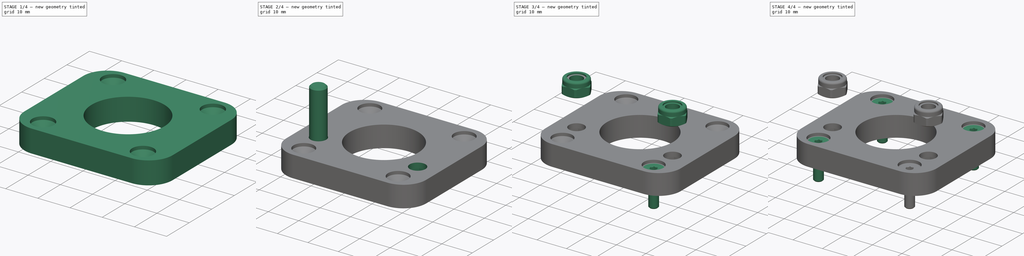
[diagram: build sequence overview — one tinted view per stage of 4, left to right]
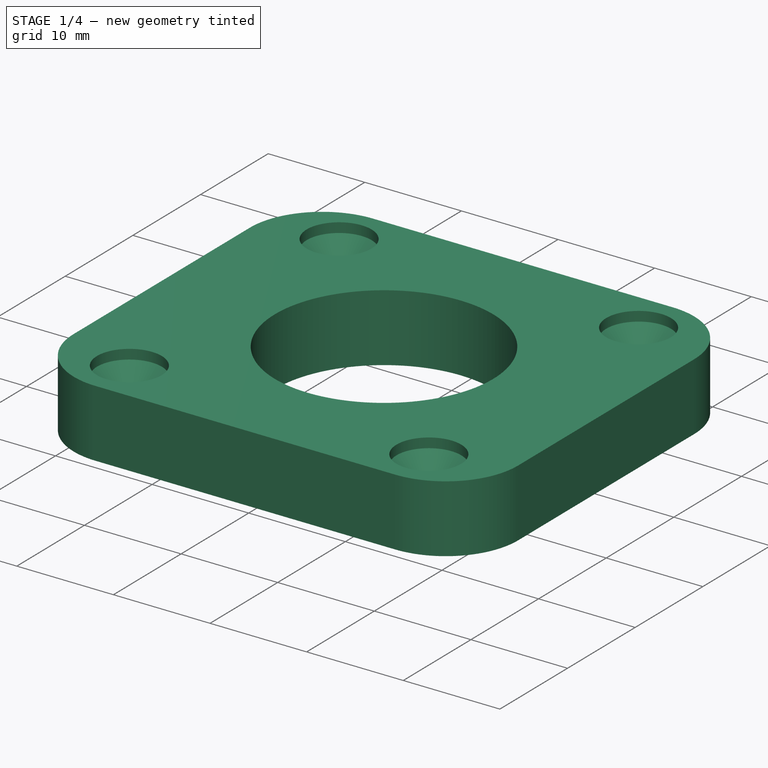
[diagram: stage 1 of 4 — iso view after this stage's code; geometry added in this stage tinted green]
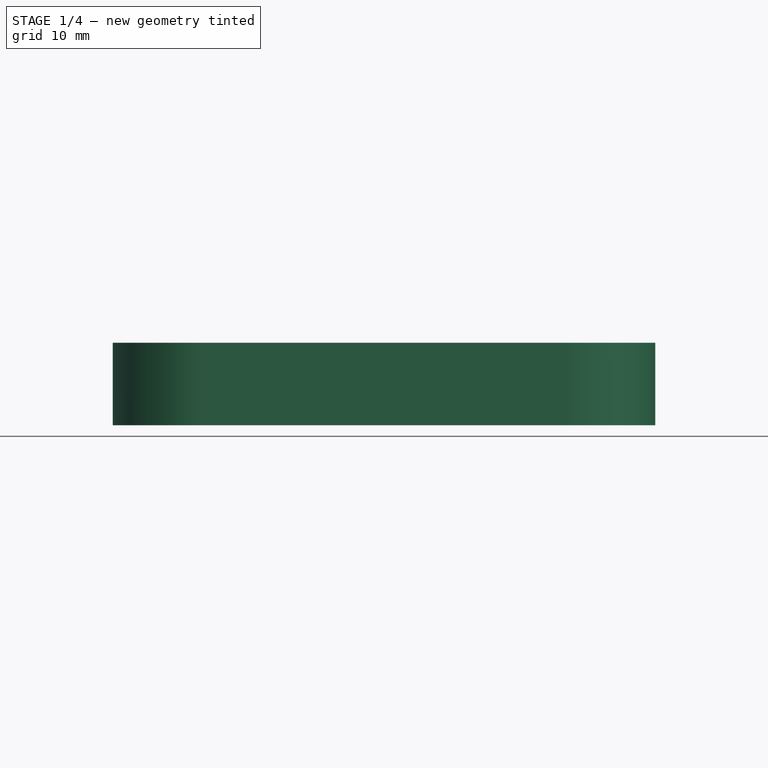
[diagram: stage 1 of 4 — front view after this stage's code; geometry added in this stage tinted green]
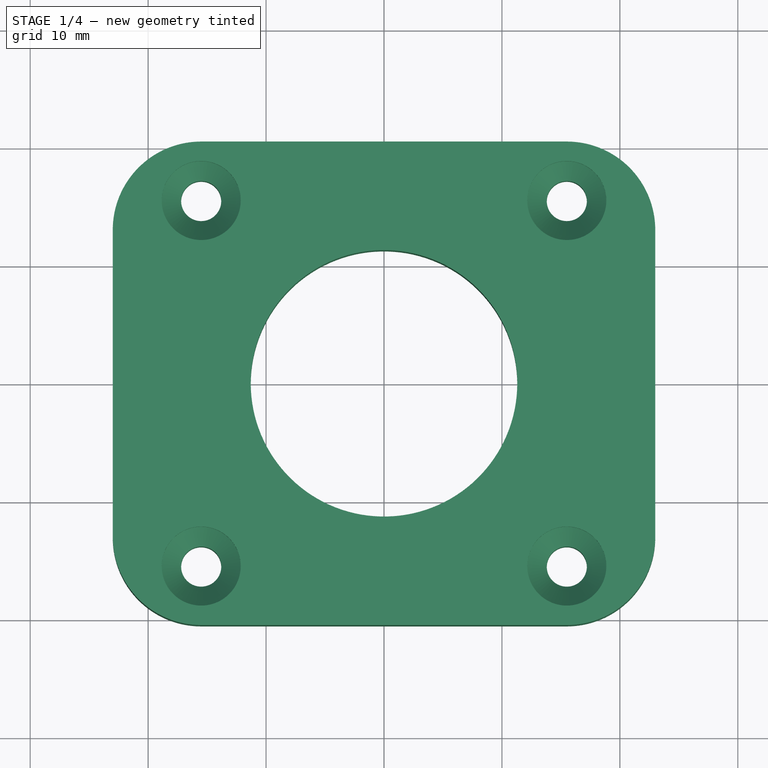
[diagram: stage 1 of 4 — top view after this stage's code; geometry added in this stage tinted green]
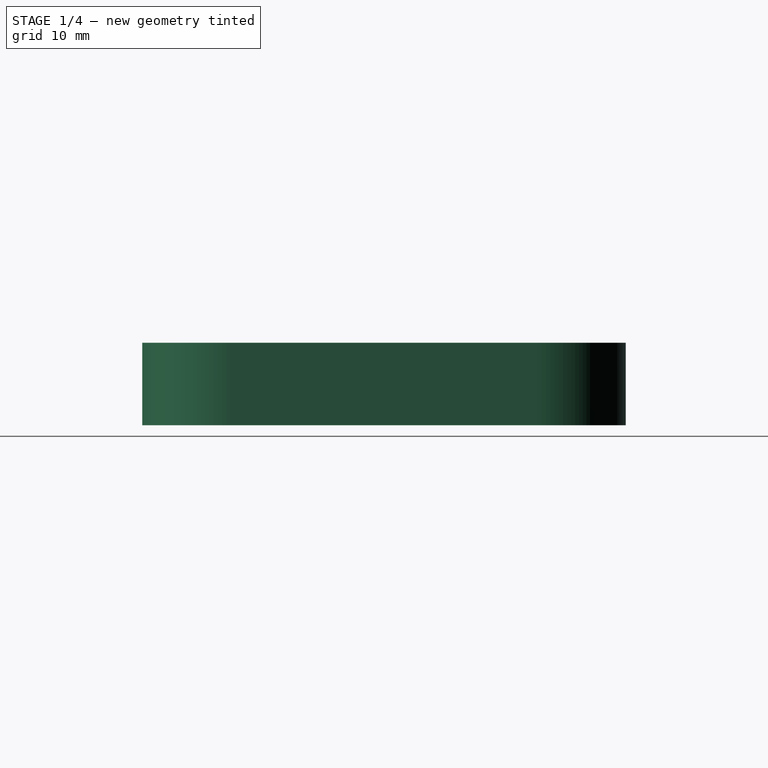
[diagram: stage 1 of 4 — right view after this stage's code; geometry added in this stage tinted green]
FCSTD DOCUMENT  (FreeCAD 0.20R29177 +426 (Git))
Label: SerpentinePlateCaptiveNut
License: All rights reserved
LicenseURL: http://en.wikipedia.org/wiki/All_rights_reserved
objects: Part::FeaturePython×8, App::DocumentObjectGroup×4, Sketcher::SketchObject×4, PartDesign::CoordinateSystem×3, PartDesign::Hole×2, PartDesign::Pocket×2, App::FeaturePython×1, PartDesign::Pad×1, PartDesign::Body×1, App::Part×1
note: 26 computed .brp shape members not serialized (recipe doc carries the construction recipe); baked Part::Feature solids carry a one-line shape summary decoded from their .brp

FEATURE [App::DocumentObjectGroup] Parts
FEATURE [PartDesign::CoordinateSystem] LCS_Origin
  AttacherType = Attacher::AttachEngine3D
  MapMode = 2
  Support = -> [X_Axis]
FEATURE [App::FeaturePython] Variables  # WARN: FeaturePython — macro-defined, semantics opaque (R4)
  IdlerMountOffsetX = 16.3
  IdlerMountOffsetY = 7.5
  Type = App::PropertyContainer
FEATURE [App::DocumentObjectGroup] Constraints
FEATURE [App::DocumentObjectGroup] Configurations
FEATURE [Sketcher::SketchObject] Sketch
  FullyConstrained = true
  MapMode = 5
  Support = -> [XY_Plane001]
  sketch-geometry (23):
    g0: LineSegment StartX=-15.5 StartY=15.5 StartZ=0 EndX=-15.5 EndY=-15.5 EndZ=0
    g1: LineSegment StartX=-15.5 StartY=-15.5 StartZ=0 EndX=15.5 EndY=-15.5 EndZ=0
    g2: LineSegment StartX=15.5 StartY=-15.5 StartZ=0 EndX=15.5 EndY=15.5 EndZ=0
    g3: LineSegment StartX=15.5 StartY=15.5 StartZ=0 EndX=-15.5 EndY=15.5 EndZ=0
    g4: GeomPoint X=0 Y=0 Z=0
    g5: Circle CenterX=-15.5 CenterY=15.5 CenterZ=0 NormalX=0 NormalY=0 NormalZ=1 AngleXU=0 Radius=1.7
    g6: Circle CenterX=15.5 CenterY=15.5 CenterZ=0 NormalX=0 NormalY=0 NormalZ=1 AngleXU=0 Radius=1.7
    g7: Circle CenterX=15.5 CenterY=-15.5 CenterZ=0 NormalX=0 NormalY=0 NormalZ=1 AngleXU=0 Radius=1.7
    g8: Circle CenterX=-15.5 CenterY=-15.5 CenterZ=0 NormalX=0 NormalY=0 NormalZ=1 AngleXU=0 Radius=1.7
    g9: Circle CenterX=0 CenterY=0 CenterZ=0 NormalX=0 NormalY=0 NormalZ=1 AngleXU=0 Radius=11.3
    g10: Circle CenterX=0 CenterY=0 CenterZ=0 NormalX=0 NormalY=0 NormalZ=1 AngleXU=0 Radius=6.11
    g11: ArcOfCircle CenterX=-15.5 CenterY=13 CenterZ=0 NormalX=0 NormalY=0 NormalZ=1 AngleXU=0 Radius=7.5 StartAngle=1.5708 EndAngle=3.14159
    g12: LineSegment StartX=-15.5 StartY=20.5 StartZ=0 EndX=15.5 EndY=20.5 EndZ=0
    g13: ArcOfCircle CenterX=15.5 CenterY=13 CenterZ=0 NormalX=0 NormalY=0 NormalZ=1 AngleXU=0 Radius=7.5 StartAngle=1e-16 EndAngle=1.5708
    g14: LineSegment StartX=23 StartY=13 StartZ=0 EndX=23 EndY=-13 EndZ=0
    g15: ArcOfCircle CenterX=15.5 CenterY=-13 CenterZ=0 NormalX=0 NormalY=0 NormalZ=1 AngleXU=0 Radius=7.5 StartAngle=4.71239 EndAngle=6.28319
    g16: LineSegment StartX=15.5 StartY=-20.5 StartZ=0 EndX=-15.5 EndY=-20.5 EndZ=0
    g17: ArcOfCircle CenterX=-15.5 CenterY=-13 CenterZ=0 NormalX=0 NormalY=0 NormalZ=1 AngleXU=0 Radius=7.5 StartAngle=3.14159 EndAngle=4.71239
    g18: LineSegment StartX=-23 StartY=-13 StartZ=0 EndX=-23 EndY=13 EndZ=0
    g19: GeomPoint X=-23 Y=20.5 Z=0
    g20: GeomPoint X=23 Y=-20.5 Z=0
    g21: LineSegment StartX=-15.5 StartY=20.5 StartZ=0 EndX=-15.5 EndY=15.5 EndZ=0
    g22: LineSegment StartX=15.5 StartY=-20.5 StartZ=0 EndX=15.5 EndY=-15.5 EndZ=0
  constraints (52):
    c: Coincident(g0,g1)
    c: Coincident(g1,g2)
    c: Coincident(g2,g3)
    c: Coincident(g3,g0)
    c: Horizontal(g1)
    c: Horizontal(g3)
    c: Vertical(g0)
    c: Vertical(g2)
    c: Symmetric(g1,g0,g4)
    c: Coincident(g4,g-1)
    c: Coincident(g5,g0)
    c: Coincident(g6,g2)
    c: Coincident(g7,g1)
    c: Coincident(g8,g0)
    c: Equal(g3,g0)
    c: Equal(g6,g5)
    c: Equal(g5,g8)
    c: Equal(g8,g7)
    c: Diameter(g6) = 3.4
    c: Coincident(g9,g4)
    c: Diameter(g9) = 22.6
    c: Coincident(g10,g9)
    c: Diameter(g10) = 12.22
    c: DistanceX(g3,g3) = 31
    c: Tangent(g11,g12) = 1.5708
    c: Tangent(g12,g13) = 1.5708
    c: Tangent(g13,g14) = 1.5708
    c: Tangent(g14,g15) = 1.5708
    c: Tangent(g15,g16) = 1.5708
    c: Tangent(g16,g17) = 1.5708
    c: Tangent(g17,g18) = 1.5708
    c: Tangent(g18,g11) = 1.5708
    c: Horizontal(g12)
    c: Horizontal(g16)
    c: Vertical(g14)
    c: Vertical(g18)
    c: Equal(g11,g13)
    c: Equal(g13,g15)
    c: Equal(g15,g17)
    c: PointOnObject(g19,g12)
    c: PointOnObject(g19,g18)
    c: PointOnObject(g20,g14)
    c: PointOnObject(g20,g16)
    c: DistanceX(g11,g13) = 46
    c: PointOnObject(g15,g2)
    c: DistanceY(g15,g7) = 5
    c: PointOnObject(g11,g0)
    c: Coincident(g21,g11)
    c: Coincident(g21,g0)
    c: Coincident(g22,g15)
    c: Coincident(g22,g1)
    c: Equal(g22,g21)
FEATURE [Sketcher::SketchObject] Sketch001
  AttachmentOffset = pos=(16.3,-7.5,5.4) rot=(0,0,1;0rad)
  FullyConstrained = true
  MapMode = 5
  Placement = pos=(16.3,-7.5,5.4) rot=(0,0,1;0rad)
  Support = -> [XY_Plane001]
  expr: .AttachmentOffset.Base.x = <<Variables>>.IdlerMountOffsetX
  expr: .AttachmentOffset.Base.y = <<Variables>>.IdlerMountOffsetY * -1
  expr: Constraints[5] = <<Variables>>.IdlerMountOffsetX * 2
  sketch-geometry (17):
    g0: GeomPoint X=0 Y=0 Z=0
    g1: Circle CenterX=0 CenterY=0 CenterZ=0 NormalX=0 NormalY=0 NormalZ=1 AngleXU=0 Radius=2.5
    g2: Circle CenterX=-32.6 CenterY=0 CenterZ=0 NormalX=0 NormalY=0 NormalZ=1 AngleXU=0 Radius=2.5
    g3: LineSegment StartX=-30.3195 StartY=3.95 StartZ=0 EndX=-34.8805 EndY=3.95 EndZ=0
    g4: LineSegment StartX=-34.8805 StartY=3.95 StartZ=0 EndX=-37.1611 EndY=-9e-16 EndZ=0
    g5: LineSegment StartX=-37.1611 StartY=-9e-16 StartZ=0 EndX=-34.8805 EndY=-3.95 EndZ=0
    g6: LineSegment StartX=-34.8805 StartY=-3.95 StartZ=0 EndX=-30.3195 EndY=-3.95 EndZ=0
    g7: LineSegment StartX=-30.3195 StartY=-3.95 StartZ=0 EndX=-28.0389 EndY=4e-16 EndZ=0
    g8: LineSegment StartX=-28.0389 StartY=4e-16 StartZ=0 EndX=-30.3195 EndY=3.95 EndZ=0
    g9: Circle CenterX=-32.6 CenterY=0 CenterZ=0 NormalX=0 NormalY=0 NormalZ=1 AngleXU=0 Radius=4.56107
    g10: LineSegment StartX=-2.28053 StartY=3.95 StartZ=0 EndX=-4.56107 EndY=9e-16 EndZ=0
    g11: LineSegment StartX=-4.56107 StartY=9e-16 StartZ=0 EndX=-2.28053 EndY=-3.95 EndZ=0
    g12: LineSegment StartX=-2.28053 StartY=-3.95 StartZ=0 EndX=2.28053 EndY=-3.95 EndZ=0
    g13: LineSegment StartX=2.28053 StartY=-3.95 StartZ=0 EndX=4.56107 EndY=4e-16 EndZ=0
    g14: LineSegment StartX=4.56107 StartY=4e-16 StartZ=0 EndX=2.28053 EndY=3.95 EndZ=0
    g15: LineSegment StartX=2.28053 StartY=3.95 StartZ=0 EndX=-2.28053 EndY=3.95 EndZ=0
    g16: Circle CenterX=0 CenterY=0 CenterZ=0 NormalX=0 NormalY=0 NormalZ=1 AngleXU=0 Radius=4.56107
  constraints (38):
    c: Coincident(g0,g-1)
    c: Diameter(g1) = 5
    c: Coincident(g1,g0)
    c: PointOnObject(g2,g-1)
    c: Equal(g2,g1)
    c: DistanceX(g2,g1) = 32.6
    c: Coincident(g3,g4)
    c: Coincident(g4,g5)
    c: Coincident(g5,g6)
    c: Coincident(g6,g7)
    c: Coincident(g7,g8)
    c: Coincident(g8,g3)
    c: Equal(g3, g4-g8) x5
    c: PointOnObject(g3,g9)
    c: PointOnObject(g4,g9)
    c: PointOnObject(g5,g9)
    c: PointOnObject(g6,g9)
    c: PointOnObject(g7,g9)
    c: PointOnObject(g8,g9)
    c: Coincident(g9,g2)
    c: Horizontal(g3)
    c: DistanceY(g5,g3) = 7.9
    c: Coincident(g10,g11)
    c: Coincident(g11,g12)
    c: Coincident(g12,g13)
    c: Coincident(g13,g14)
    c: Coincident(g14,g15)
    c: Coincident(g15,g10)
    c: Equal(g10, g11-g15) x5
    c: PointOnObject(g10,g16)
    c: PointOnObject(g11,g16)
    c: PointOnObject(g12,g16)
    c: PointOnObject(g13,g16)
    c: PointOnObject(g14,g16)
    c: PointOnObject(g15,g16)
    c: Coincident(g16,g0)
    c: Horizontal(g15)
    c: Equal(g15,g3)
FEATURE [PartDesign::Pad] Pad
  Direction = (0,0,1)
  Length = 7
  Length2 = 10
  Profile = -> Sketch
  ReferenceAxis = -> Sketch [N_Axis]
  Type = 0
FEATURE [Sketcher::SketchObject] Sketch003
  AttachmentOffset = pos=(0,0,6) rot=(0,0,1;0rad)
  FullyConstrained = true
  MapMode = 5
  Placement = pos=(0,0,6) rot=(0,0,1;0rad)
  Support = -> [XY_Plane001]
  expr: .AttachmentOffset.Base.z = <<Pad>>.Length - 1mm
  sketch-geometry (19):
    g0: LineSegment StartX=-15.5 StartY=15.5 StartZ=0 EndX=-15.5 EndY=-15.5 EndZ=0
    g1: LineSegment StartX=-15.5 StartY=-15.5 StartZ=0 EndX=15.5 EndY=-15.5 EndZ=0
    g2: LineSegment StartX=15.5 StartY=-15.5 StartZ=0 EndX=15.5 EndY=15.5 EndZ=0
    g3: LineSegment StartX=15.5 StartY=15.5 StartZ=0 EndX=-15.5 EndY=15.5 EndZ=0
    g4: GeomPoint X=0 Y=0 Z=0
    g5: Circle CenterX=-15.5 CenterY=15.5 CenterZ=0 NormalX=0 NormalY=0 NormalZ=1 AngleXU=0 Radius=1.7
    g6: Circle CenterX=15.5 CenterY=15.5 CenterZ=0 NormalX=0 NormalY=0 NormalZ=1 AngleXU=0 Radius=1.7
    g7: Circle CenterX=15.5 CenterY=-15.5 CenterZ=0 NormalX=0 NormalY=0 NormalZ=1 AngleXU=0 Radius=1.7
    g8: Circle CenterX=-15.5 CenterY=-15.5 CenterZ=0 NormalX=0 NormalY=0 NormalZ=1 AngleXU=0 Radius=1.7
    g9: ArcOfCircle CenterX=-15.5 CenterY=15.5 CenterZ=0 NormalX=0 NormalY=0 NormalZ=1 AngleXU=0 Radius=6 StartAngle=1.5708 EndAngle=3.14159
    g10: LineSegment StartX=-15.5 StartY=21.5 StartZ=0 EndX=15.5 EndY=21.5 EndZ=0
    g11: ArcOfCircle CenterX=15.5 CenterY=15.5 CenterZ=0 NormalX=0 NormalY=0 NormalZ=1 AngleXU=0 Radius=6 StartAngle=1e-16 EndAngle=1.5708
    g12: LineSegment StartX=21.5 StartY=15.5 StartZ=0 EndX=21.5 EndY=-13.5 EndZ=0
    g13: ArcOfCircle CenterX=15.5 CenterY=-13.5 CenterZ=0 NormalX=0 NormalY=0 NormalZ=1 AngleXU=0 Radius=6 StartAngle=4.71239 EndAngle=6.28319
    g14: LineSegment StartX=15.5 StartY=-19.5 StartZ=0 EndX=-15.5 EndY=-19.5 EndZ=0
    g15: ArcOfCircle CenterX=-15.5 CenterY=-13.5 CenterZ=0 NormalX=0 NormalY=0 NormalZ=1 AngleXU=0 Radius=6 StartAngle=3.14159 EndAngle=4.71239
    g16: LineSegment StartX=-21.5 StartY=-13.5 StartZ=0 EndX=-21.5 EndY=15.5 EndZ=0
    g17: GeomPoint X=-21.5 Y=21.5 Z=0
    g18: GeomPoint X=21.5 Y=-19.5 Z=0
  constraints (43):
    c: Coincident(g0,g1)
    c: Coincident(g1,g2)
    c: Coincident(g2,g3)
    c: Coincident(g3,g0)
    c: Horizontal(g1)
    c: Horizontal(g3)
    c: Vertical(g0)
    c: Vertical(g2)
    c: Symmetric(g1,g0,g4)
    c: Coincident(g4,g-1)
    c: Coincident(g5,g0)
    c: Coincident(g6,g2)
    c: Coincident(g7,g1)
    c: Coincident(g8,g0)
    c: Equal(g3,g0)
    c: Equal(g6,g5)
    c: Equal(g5,g8)
    c: Equal(g8,g7)
    c: Diameter(g6) = 3.4
    c: DistanceX(g3,g3) = 31
    c: Tangent(g9,g10) = 1.5708
    c: Tangent(g10,g11) = 1.5708
    c: Tangent(g11,g12) = 1.5708
    c: Tangent(g12,g13) = 1.5708
    c: Tangent(g13,g14) = 1.5708
    c: Tangent(g14,g15) = 1.5708
    c: Tangent(g15,g16) = 1.5708
    c: Tangent(g16,g9) = 1.5708
    c: Horizontal(g10)
    c: Horizontal(g14)
    c: Vertical(g12)
    c: Vertical(g16)
    c: Equal(g9,g11)
    c: Equal(g11,g13)
    c: Equal(g13,g15)
    c: PointOnObject(g17,g10)
    c: PointOnObject(g17,g16)
    c: PointOnObject(g18,g12)
    c: PointOnObject(g18,g14)
    c: Coincident(g9,g5)
    c: DistanceX(g9,g11) = 43
    c: PointOnObject(g13,g2)
    c: DistanceY(g13,g7) = 4
FEATURE [PartDesign::Hole] Hole  label="StepperHoles"
  BaseFeature = -> Pad
  CustomThreadClearance = 0
  Depth = 25
  DepthType = 0
  Diameter = 3.4
  DrillForDepth = false
  DrillPoint = 1
  DrillPointAngle = 118
  HoleCutCountersinkAngle = 90
  HoleCutCustomValues = false
  HoleCutDepth = 0
  HoleCutDiameter = 6.7
  HoleCutType = 7
  ModelThread = false
  Profile = -> Sketch003
  Tapered = false
  TaperedAngle = 90
  ThreadClass = 0
  ThreadDepth = 25
  ThreadDepthType = 0
  ThreadDirection = 0
  ThreadFit = 0
  ThreadSize = 9
  ThreadType = 1
  Threaded = false
  UseCustomThreadClearance = false
FEATURE [App::DocumentObjectGroup] Fasteners
  Group = -> [Screw,Screw001,Screw002,Screw003,Screw004,Screw005,Nut,Nut001]
FEATURE [PartDesign::Hole] Hole003
  BaseFeature = -> Hole
  CustomThreadClearance = 0
  Depth = 125.273
  DepthType = 1
  Diameter = 6.7
  DrillForDepth = false
  DrillPoint = 1
  DrillPointAngle = 118
  HoleCutCountersinkAngle = 90
  HoleCutCustomValues = false
  HoleCutDepth = 0
  HoleCutDiameter = 6.1
  HoleCutType = 0
  ModelThread = false
  Profile = -> Sketch003
  Reversed = true
  Tapered = false
  TaperedAngle = 90
  ThreadClass = 0
  ThreadDepth = 125.273
  ThreadDepthType = 0
  ThreadDirection = 0
  ThreadFit = 0
  ThreadSize = 0
  ThreadType = 0
  Threaded = false
  UseCustomThreadClearance = false
  expr: Diameter = <<StepperHoles>>.HoleCutDiameter
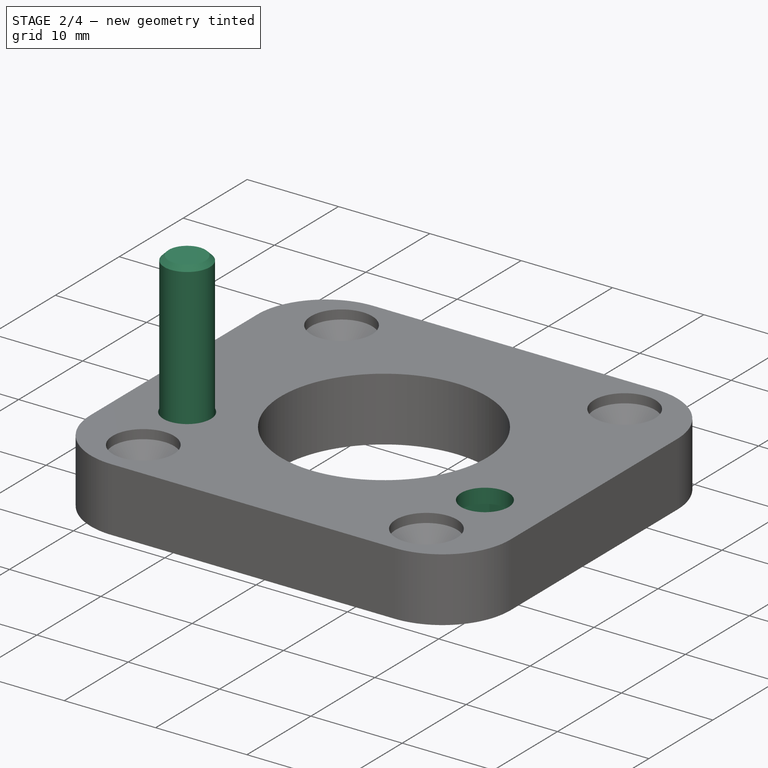
[diagram: stage 2 of 4 — iso view after this stage's code; geometry added in this stage tinted green]
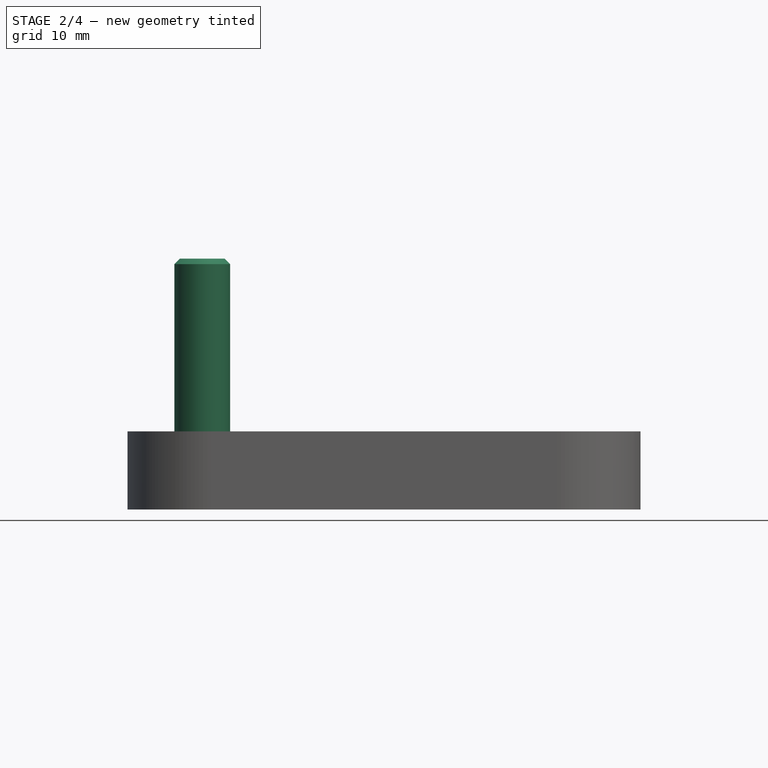
[diagram: stage 2 of 4 — front view after this stage's code; geometry added in this stage tinted green]
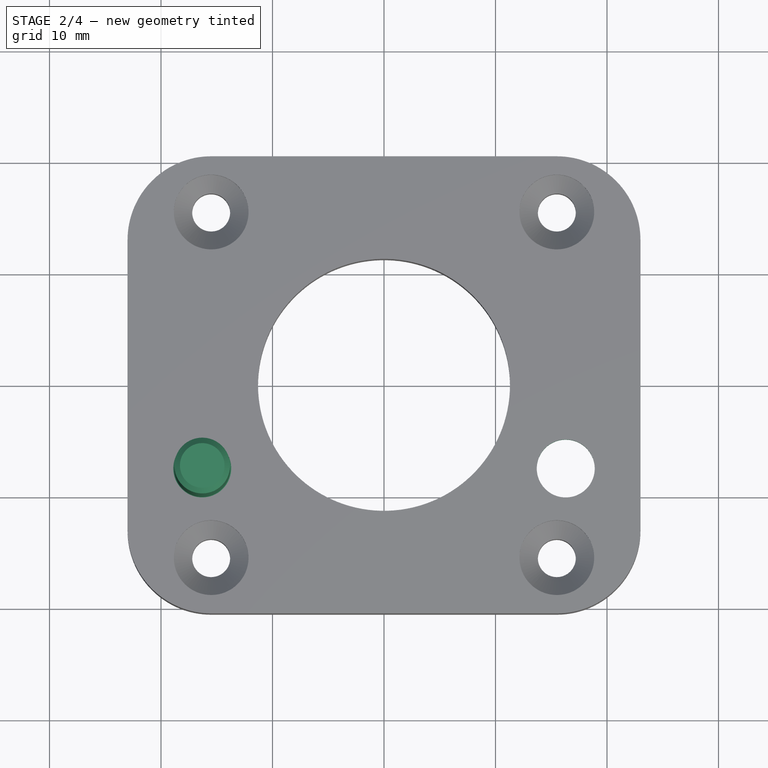
[diagram: stage 2 of 4 — top view after this stage's code; geometry added in this stage tinted green]
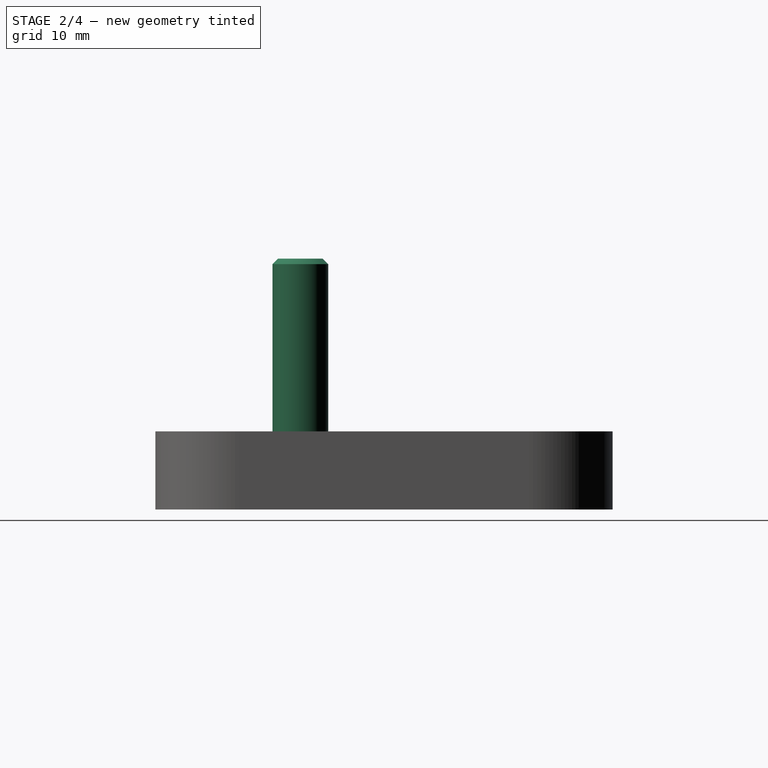
[diagram: stage 2 of 4 — right view after this stage's code; geometry added in this stage tinted green]
FEATURE [Part::FeaturePython] Screw005  label="M5x22-Screw001"  # Fasteners workbench fastener (typed FeaturePython)
  Placement = pos=(-16.3,-7.5,0.5) rot=(-1,0,0;3.14159rad)
  baseObject = -> Sketch001 [Edge2]
  diameter = 5
  invert = true
  leftHanded = false
  length = 11
  lengthCustom = 22
  matchOuter = false
  offset = 0
  thread = false
  type = 18
FEATURE [PartDesign::Pocket] Pocket  label="NutPocket"
  BaseFeature = -> Hole003
  Direction = (0,0,-1)
  Length = 5
  Length2 = 5
  Profile = -> Sketch001
  ReferenceAxis = -> Sketch001 [N_Axis]
  Type = 1
FEATURE [Sketcher::SketchObject] Sketch004
  AttachmentOffset = pos=(16.3,-7.5,4.9) rot=(0,0,1;0rad)
  FullyConstrained = true
  MapMode = 5
  Placement = pos=(16.3,-7.5,4.9) rot=(0,0,1;0rad)
  Support = -> [XY_Plane001]
  expr: .AttachmentOffset.Base.x = <<Variables>>.IdlerMountOffsetX
  expr: .AttachmentOffset.Base.y = <<Variables>>.IdlerMountOffsetY * -1
  expr: Constraints[5] = <<Variables>>.IdlerMountOffsetX * 2
  sketch-geometry (3):
    g0: GeomPoint X=0 Y=0 Z=0
    g1: Circle CenterX=0 CenterY=0 CenterZ=0 NormalX=0 NormalY=0 NormalZ=1 AngleXU=0 Radius=2.6
    g2: Circle CenterX=-32.6 CenterY=0 CenterZ=0 NormalX=0 NormalY=0 NormalZ=1 AngleXU=0 Radius=2.6
  constraints (6):
    c: Coincident(g0,g-1)
    c: Diameter(g1) = 5.2
    c: Coincident(g1,g0)
    c: PointOnObject(g2,g-1)
    c: Equal(g2,g1)
    c: DistanceX(g2,g1) = 32.6
FEATURE [PartDesign::Pocket] Pocket001  label="IdlerBoltHole"
  BaseFeature = -> Pocket
  Direction = (0,0,-1)
  Length = 5
  Length2 = 5
  Midplane = true
  Profile = -> Sketch004
  ReferenceAxis = -> Sketch004 [N_Axis]
  Type = 1
FEATURE [PartDesign::Body] Body
  Group = -> [Sketch,Sketch001,Pad,Sketch003,Hole,Hole003,Pocket,Sketch004,Pocket001]
  Origin = -> Origin001
  Tip = -> Pocket001
FEATURE [App::Part] Assembly
  AssemblyType = Part::Link
  Group = -> [LCS_Origin,Variables,Constraints,Configurations,Body,LCS_idler1,LCS_idler2,Fasteners,Screw,Screw001,Screw002,Screw003,Screw004,Screw005,Nut,Nut001]
  Origin = -> Origin
  Type = Assembly
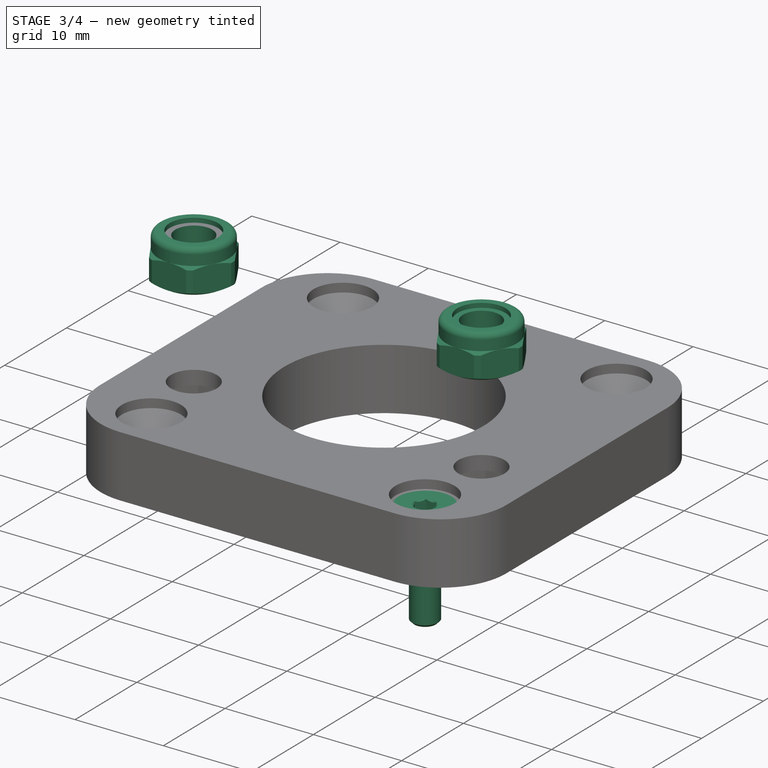
[diagram: stage 3 of 4 — iso view after this stage's code; geometry added in this stage tinted green]
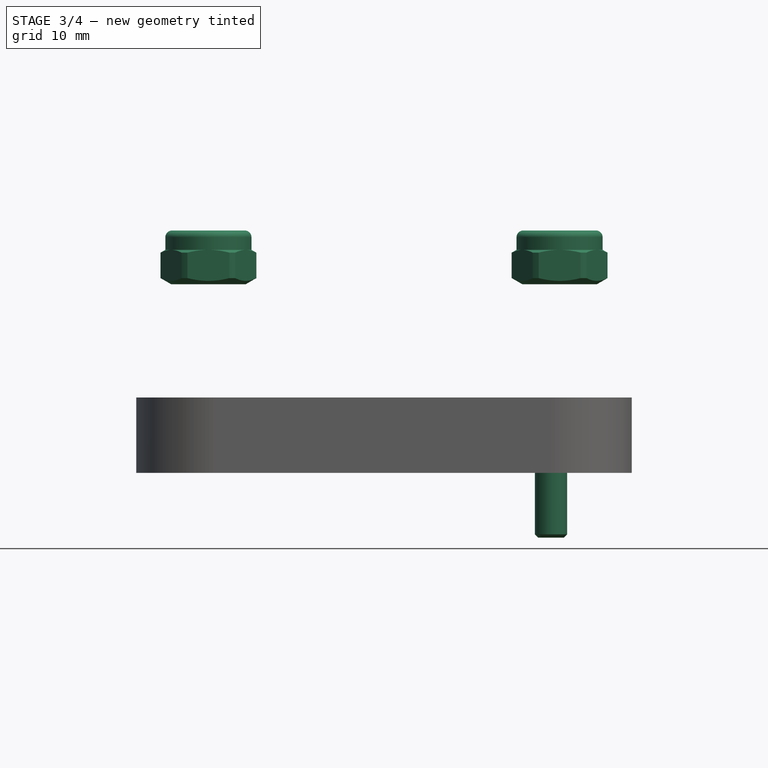
[diagram: stage 3 of 4 — front view after this stage's code; geometry added in this stage tinted green]
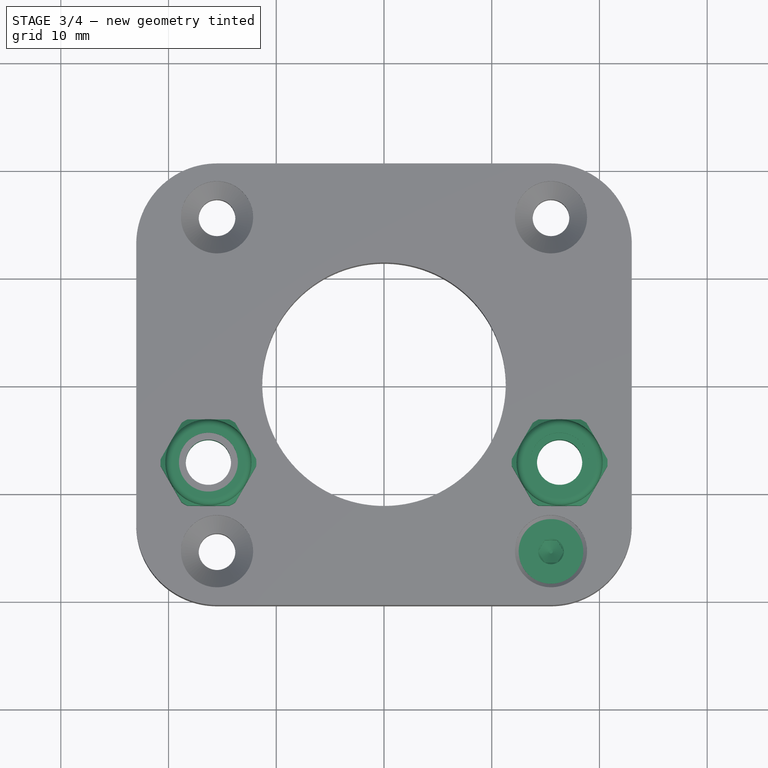
[diagram: stage 3 of 4 — top view after this stage's code; geometry added in this stage tinted green]
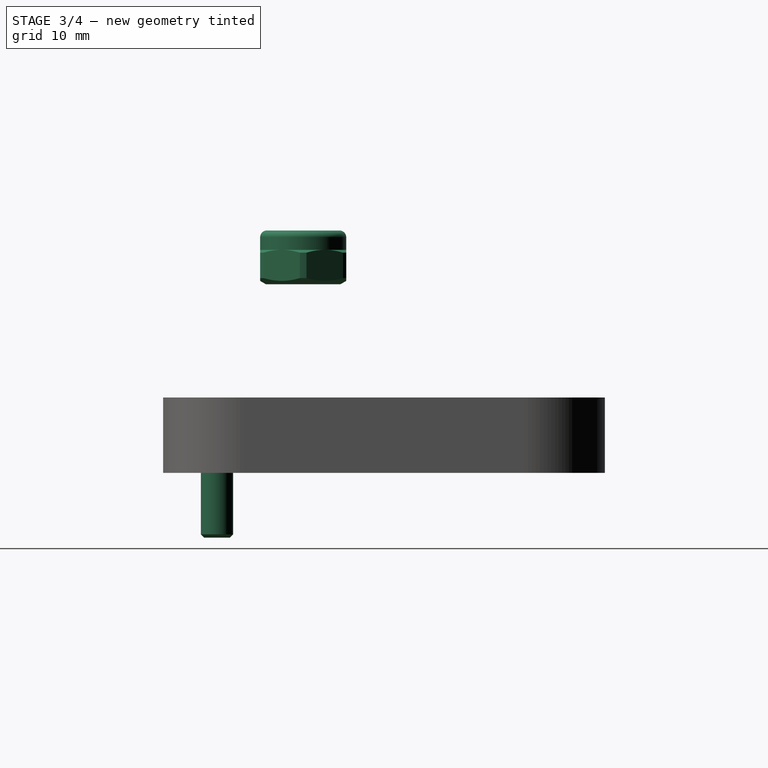
[diagram: stage 3 of 4 — right view after this stage's code; geometry added in this stage tinted green]
FEATURE [Part::FeaturePython] Screw003  label="M3x12-Screw096"  # Fasteners workbench fastener (typed FeaturePython)
  Placement = pos=(15.5,-15.5,6) rot=(0,0,1;0rad)
  baseObject = -> Sketch003 [Edge3]
  diameter = 3
  invert = false
  leftHanded = false
  length = 2
  lengthCustom = 12
  matchOuter = true
  offset = 0
  thread = false
  type = 18
FEATURE [Part::FeaturePython] Screw004  label="M5x22-Screw"  # Fasteners workbench fastener (typed FeaturePython)
  Placement = pos=(16.3,-7.5,0.5) rot=(-1,0,0;3.14159rad)
  baseObject = -> Sketch001 [Edge1]
  diameter = 5
  invert = true
  leftHanded = false
  length = 11
  lengthCustom = 22
  matchOuter = false
  offset = 0
  thread = false
  type = 18
FEATURE [Part::FeaturePython] Nut  label="M5-Nut"  # Fasteners workbench fastener (typed FeaturePython)
  Placement = pos=(16.3,-7.5,17.5093) rot=(0,0,1;0rad)
  baseObject = -> Screw004 [Edge9]
  diameter = 3
  invert = true
  leftHanded = false
  matchOuter = false
  offset = -4.5
  thread = false
  type = 5
FEATURE [Part::FeaturePython] Nut001  label="M5-Nut001"  # Fasteners workbench fastener (typed FeaturePython)
  Placement = pos=(-16.3,-7.5,17.5093) rot=(0,0,1;0rad)
  baseObject = -> Screw005 [Edge9]
  diameter = 3
  invert = true
  leftHanded = false
  matchOuter = true
  offset = -4.5
  thread = false
  type = 5
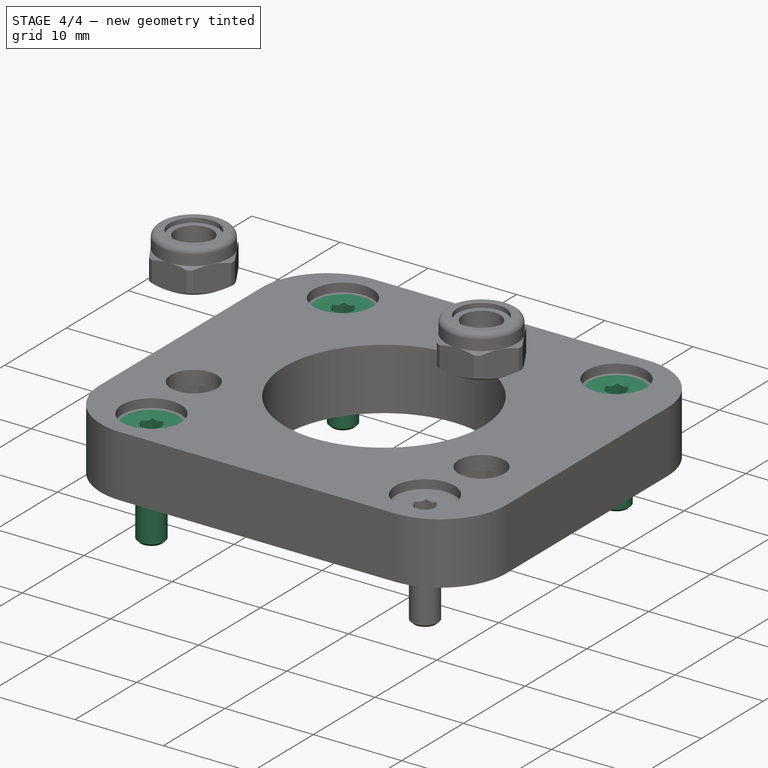
[diagram: stage 4 of 4 — iso view after this stage's code; geometry added in this stage tinted green]
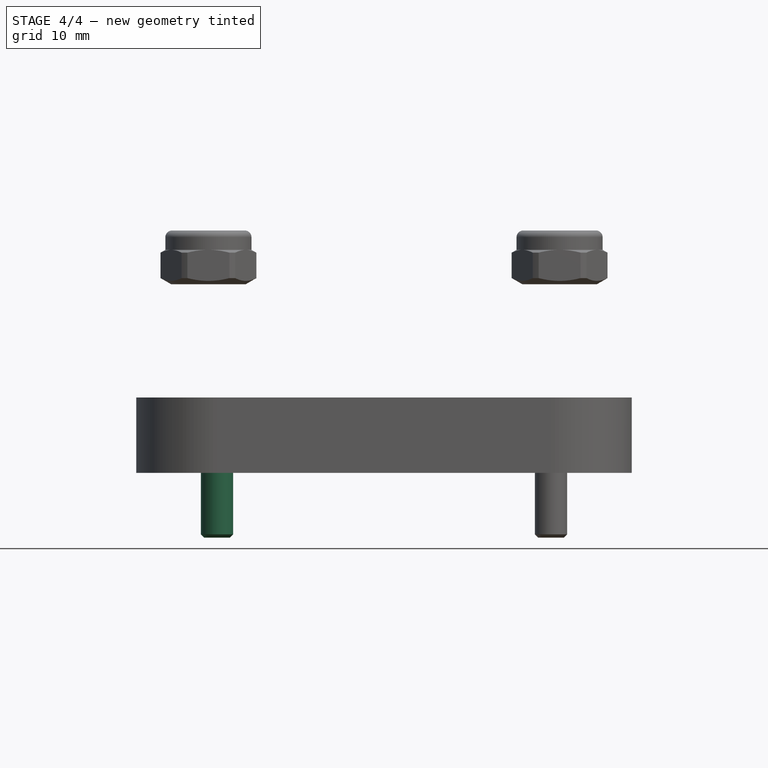
[diagram: stage 4 of 4 — front view after this stage's code; geometry added in this stage tinted green]
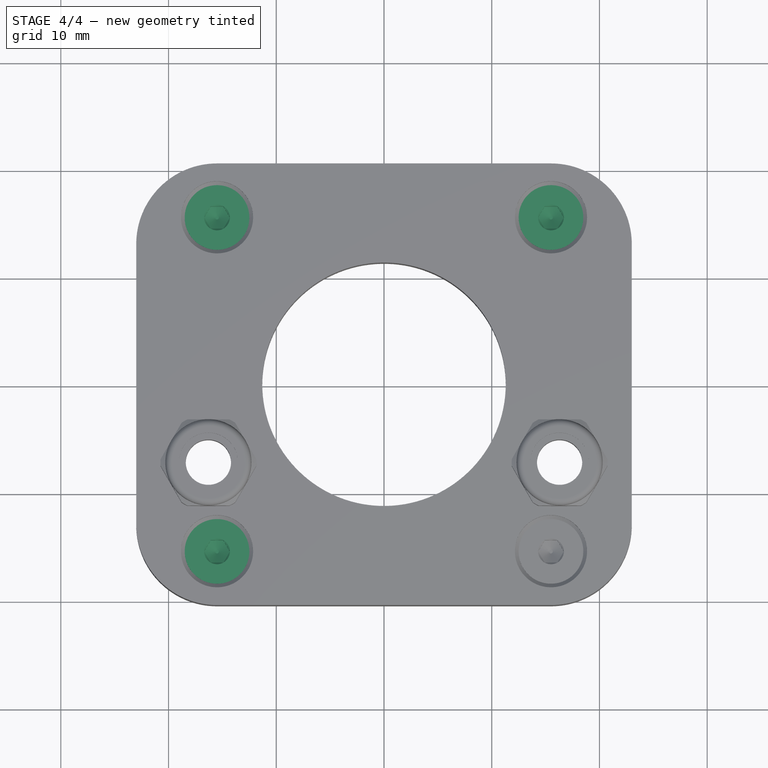
[diagram: stage 4 of 4 — top view after this stage's code; geometry added in this stage tinted green]
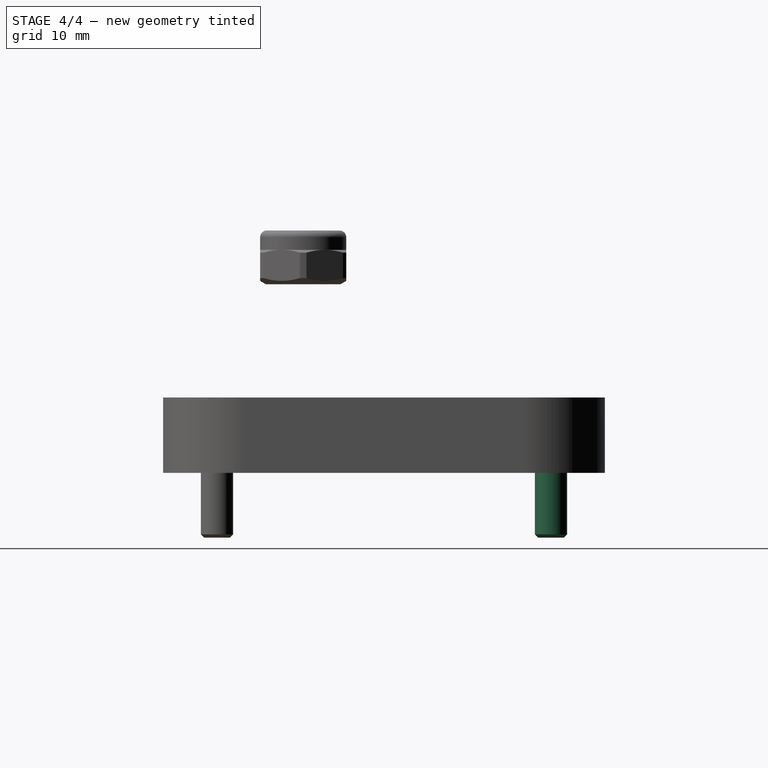
[diagram: stage 4 of 4 — right view after this stage's code; geometry added in this stage tinted green]
FEATURE [PartDesign::CoordinateSystem] LCS_idler1
  AttacherType = Attacher::AttachEngine3D
  AttachmentOffset = pos=(16.3,-7.5,7) rot=(0,0,1;0rad)
  MapMode = 2
  Placement = pos=(16.3,-7.5,7) rot=(0,0,1;0rad)
  Support = -> [XY_Plane001]
  expr: .AttachmentOffset.Base.x = Variables.IdlerMountOffsetX
  expr: .AttachmentOffset.Base.y = <<Variables>>.IdlerMountOffsetY * -1
  expr: .AttachmentOffset.Base.z = <<Pad>>.Length
FEATURE [PartDesign::CoordinateSystem] LCS_idler2
  AttacherType = Attacher::AttachEngine3D
  AttachmentOffset = pos=(-16.3,-7.5,7) rot=(0,0,1;0rad)
  MapMode = 2
  Placement = pos=(-16.3,-7.5,7) rot=(0,0,1;0rad)
  Support = -> [XY_Plane001]
  expr: .AttachmentOffset.Base.x = <<Variables>>.IdlerMountOffsetX * -1
  expr: .AttachmentOffset.Base.y = <<Variables>>.IdlerMountOffsetY * -1
  expr: .AttachmentOffset.Base.z = <<Pad>>.Length
FEATURE [Part::FeaturePython] Screw  label="M3x12-Screw"  # Fasteners workbench fastener (typed FeaturePython)
  Placement = pos=(-15.5,15.5,6) rot=(0,0,1;0rad)
  baseObject = -> Sketch003 [Edge1]
  diameter = 3
  invert = false
  leftHanded = false
  length = 2
  lengthCustom = 12
  matchOuter = true
  offset = 0
  thread = false
  type = 18
FEATURE [Part::FeaturePython] Screw001  label="M3x12-Screw094"  # Fasteners workbench fastener (typed FeaturePython)
  Placement = pos=(15.5,15.5,6) rot=(0,0,1;0rad)
  baseObject = -> Sketch003 [Edge2]
  diameter = 3
  invert = false
  leftHanded = false
  length = 2
  lengthCustom = 12
  matchOuter = true
  offset = 0
  thread = false
  type = 18
FEATURE [Part::FeaturePython] Screw002  label="M3x12-Screw095"  # Fasteners workbench fastener (typed FeaturePython)
  Placement = pos=(-15.5,-15.5,6) rot=(0,0,1;0rad)
  baseObject = -> Sketch003 [Edge4]
  diameter = 3
  invert = false
  leftHanded = false
  length = 2
  lengthCustom = 12
  matchOuter = true
  offset = 0
  thread = false
  type = 18
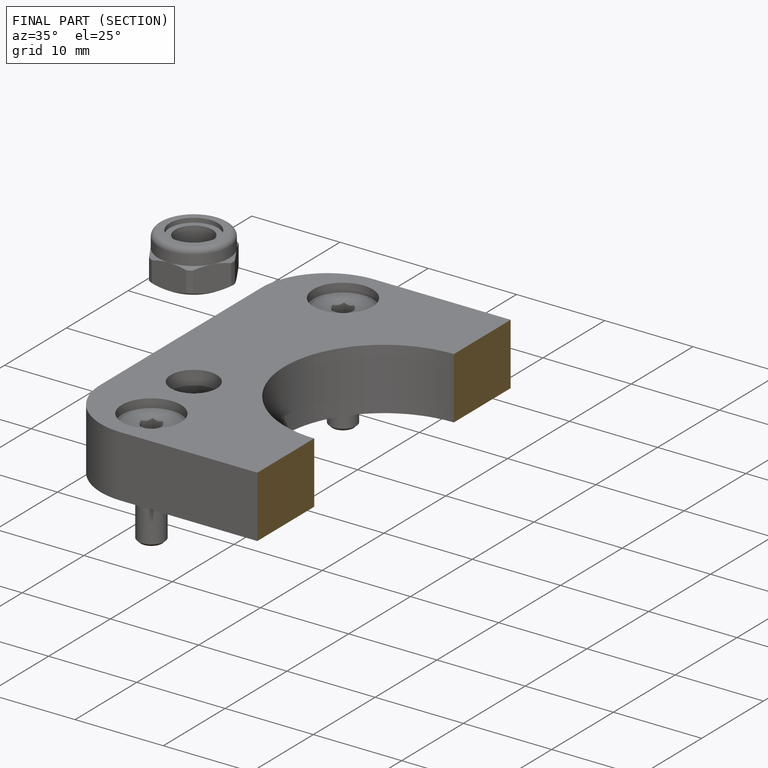
[diagram: finished part — half-section view (interior)]
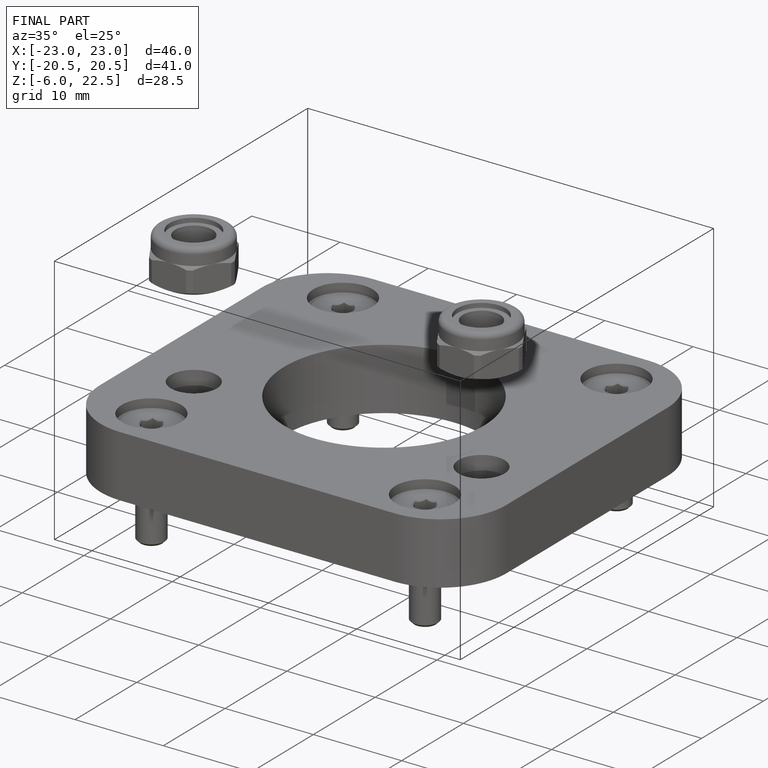
[diagram: finished part — iso view with bounding-box wireframe]
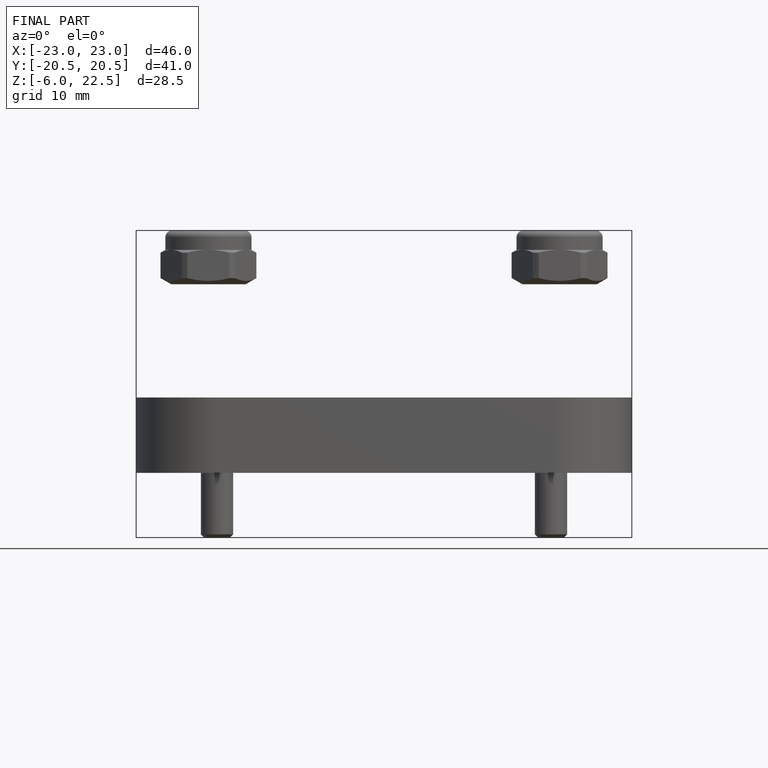
[diagram: finished part — front view with bounding-box wireframe]
